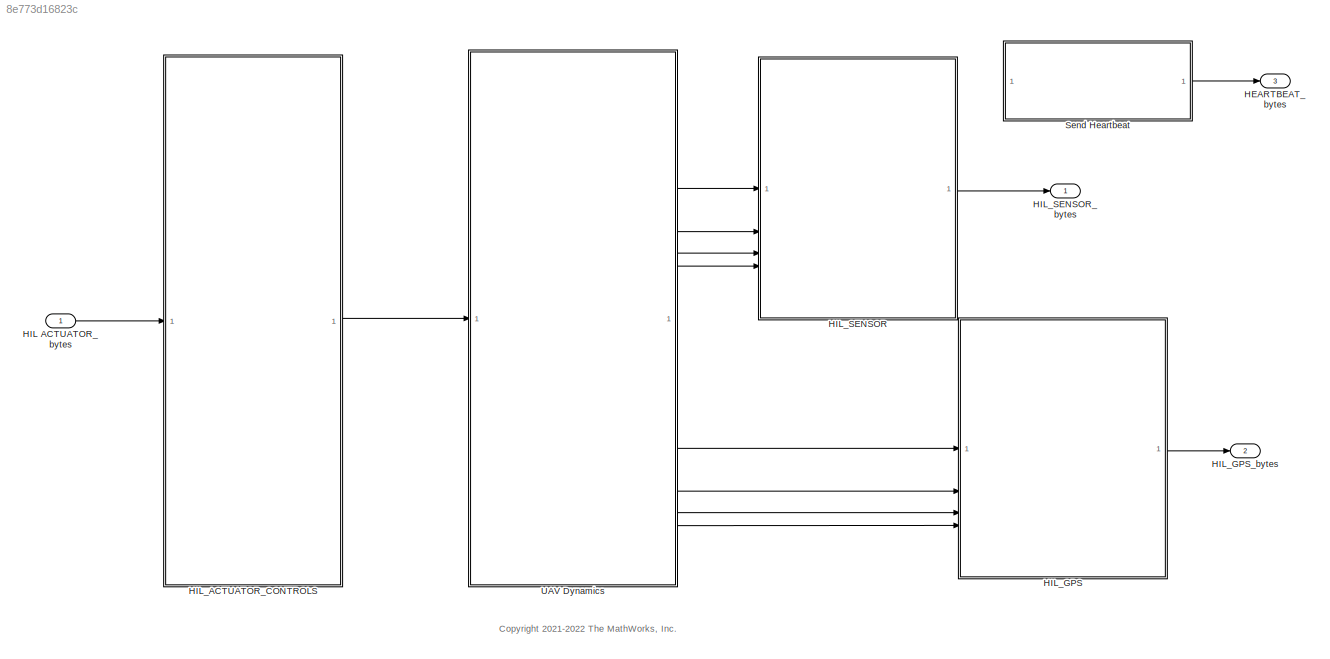
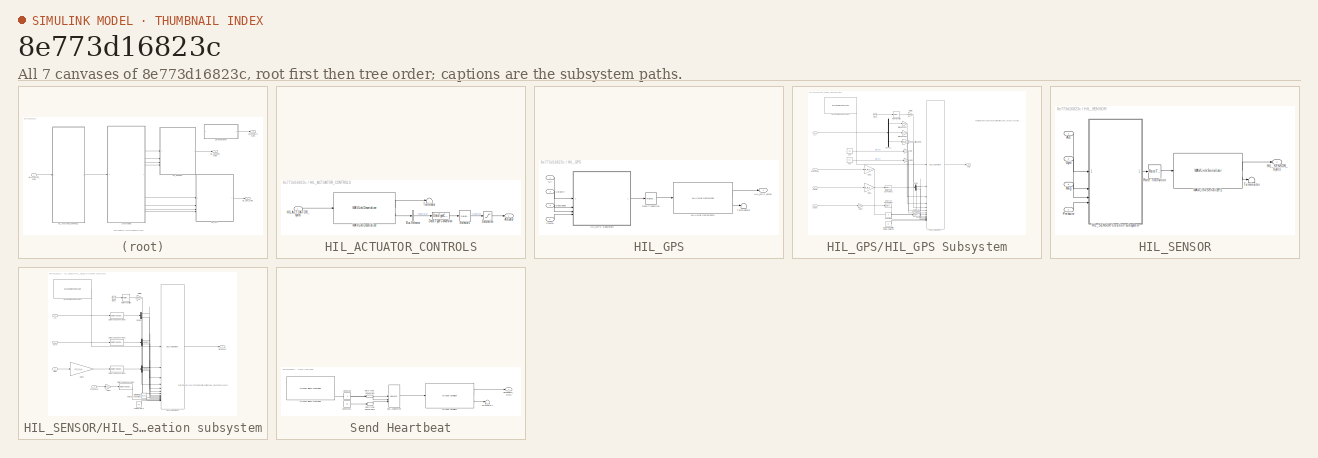
[diagram: thumbnail index - all 7 canvases of the model, root first then tree order]
MODEL slx_8e773d16823c
KIND model
CONFIG AbsTol = auto
CONFIG EnableMultiTasking = off
CONFIG FixedStep = auto
CONFIG MaxStep = auto
CONFIG MinStep = auto
CONFIG RelTol = 1e-3
CONFIG SampleTimeConstraint = Unconstrained
CONFIG SolverName = ode4
CONFIG StartTime = 0.0
CONFIG StopTime = 10.0
BLOCK [Outport] HEARTBEAT_bytes
  BusOutputAsStruct = on
  Port = 3
BLOCK [Inport] HIL ACTUATOR_bytes
  Interpolate = off
  OutDataTypeStr = uint8
  PortDimensions = MAVLink_Input_Read_Size
  SampleTime = SampleTime
  VarSizeSig = Yes
BLOCK [SubSystem] HIL_ACTUATOR_CONTROLS
BLOCK [Outport] HIL_ACTUATOR_CONTROLS/Actuator
BLOCK [BusSelector] HIL_ACTUATOR_CONTROLS/Bus Selector
  OutputSignals = Payload.controls
BLOCK [DataTypeConversion] HIL_ACTUATOR_CONTROLS/Data Type Conversion
  OutDataTypeStr = double
  RndMeth = Floor
  SaturateOnIntegerOverflow = off
BLOCK [Inport] HIL_ACTUATOR_CONTROLS/HIL ACTUATOR_bytes
BLOCK [Reference] HIL_ACTUATOR_CONTROLS/MAVLink Deserializer  REF=uavmavlinklib/MAVLink Deserializer
  SourceBlock = uavmavlinklib/MAVLink Deserializer
  SourceType = MAVLink Deserializer
BLOCK [Saturate] HIL_ACTUATOR_CONTROLS/Saturation
  LowerLimit = 0
  UpperLimit = 1
BLOCK [Selector] HIL_ACTUATOR_CONTROLS/Selector1
  IndexOptions = Index vector (dialog)
  Indices = [1:4]
  InputPortWidth = 16
  OutputSizes = 1
BLOCK [Terminator] HIL_ACTUATOR_CONTROLS/Terminator
BLOCK [SubSystem] HIL_GPS
BLOCK [Inport] HIL_GPS/Course
  Port = 4
BLOCK [Inport] HIL_GPS/GndSpeed
  Port = 3
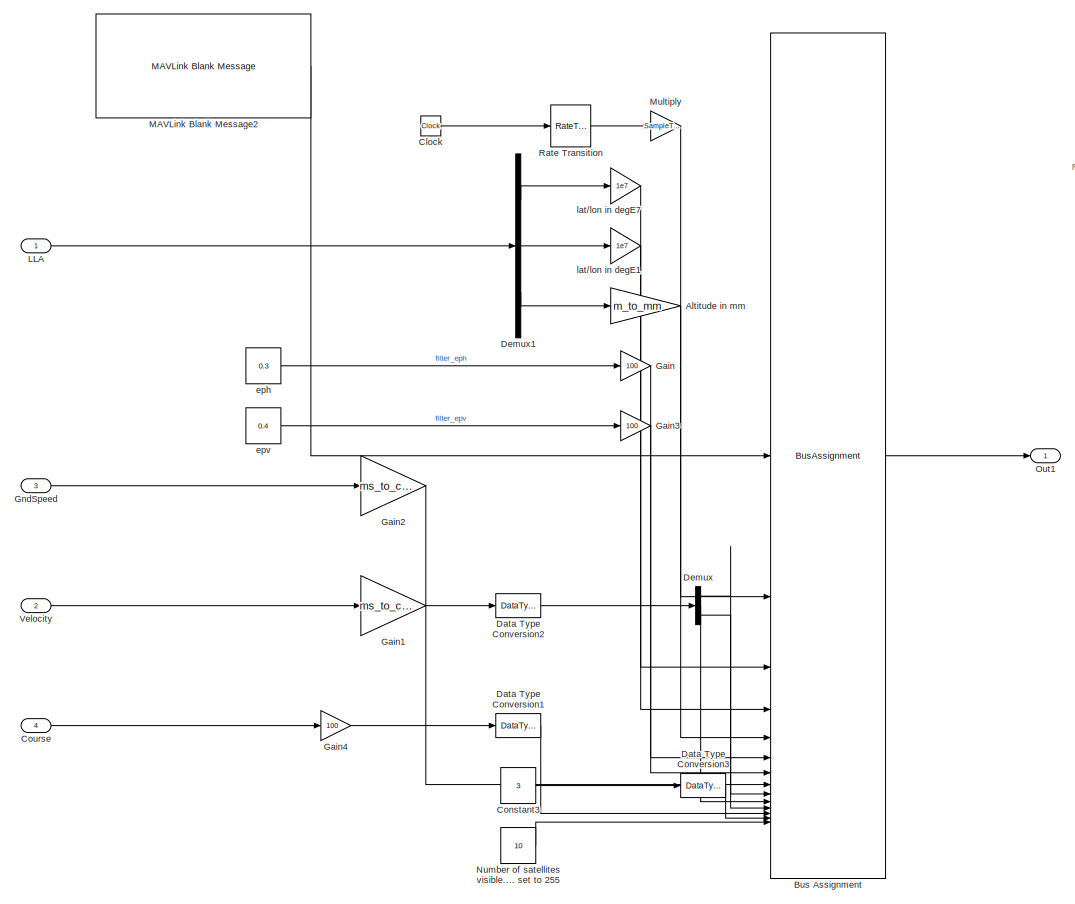
[diagram: HIL_GPS/HIL_GPS Subsystem - part 1/2, most of the canvas]
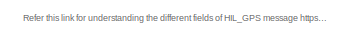
[diagram: HIL_GPS/HIL_GPS Subsystem - part 2/2, top right region]
BLOCK [SubSystem] HIL_GPS/HIL_GPS Subsystem
BLOCK [Gain] HIL_GPS/HIL_GPS Subsystem/Altitude in mm
  Gain = m_to_mm
  OutDataTypeStr = Inherit: Inherit via back propagation
BLOCK [BusAssignment] HIL_GPS/HIL_GPS Subsystem/Bus Assignment
  AssignedSignals = Payload.time_usec,Payload.lat,Payload.lon,Payload.alt,Payload.eph,Payload.epv,Payload.vel,Payload.vn,Payload.ve,Payload.vd,Payload.cog,Payload.fix_type,Payload.satellites_visible
BLOCK [Clock] HIL_GPS/HIL_GPS Subsystem/Clock
BLOCK [Constant] HIL_GPS/HIL_GPS Subsystem/Constant3
  OutDataTypeStr = Inherit: Inherit via back propagation
  SampleTime = -1
  Value = 3
BLOCK [Inport] HIL_GPS/HIL_GPS Subsystem/Course
  Port = 4
BLOCK [DataTypeConversion] HIL_GPS/HIL_GPS Subsystem/Data Type Conversion1
  OutDataTypeStr = uint16
  RndMeth = Floor
  SaturateOnIntegerOverflow = off
BLOCK [DataTypeConversion] HIL_GPS/HIL_GPS Subsystem/Data Type Conversion2
  OutDataTypeStr = int16
  RndMeth = Floor
  SaturateOnIntegerOverflow = off
BLOCK [DataTypeConversion] HIL_GPS/HIL_GPS Subsystem/Data Type Conversion3
  OutDataTypeStr = uint8
  RndMeth = Floor
  SaturateOnIntegerOverflow = off
BLOCK [Demux] HIL_GPS/HIL_GPS Subsystem/Demux
  Outputs = 3
BLOCK [Demux] HIL_GPS/HIL_GPS Subsystem/Demux1
  Outputs = 3
BLOCK [Gain] HIL_GPS/HIL_GPS Subsystem/Gain
  Gain = 100
  OutDataTypeStr = Inherit: Inherit via back propagation
BLOCK [Gain] HIL_GPS/HIL_GPS Subsystem/Gain1
  Gain = ms_to_cms
BLOCK [Gain] HIL_GPS/HIL_GPS Subsystem/Gain2
  Gain = ms_to_cms
  OutDataTypeStr = uint16
BLOCK [Gain] HIL_GPS/HIL_GPS Subsystem/Gain3
  Gain = 100
  OutDataTypeStr = Inherit: Inherit via back propagation
BLOCK [Gain] HIL_GPS/HIL_GPS Subsystem/Gain4
  Gain = 100
BLOCK [Inport] HIL_GPS/HIL_GPS Subsystem/GndSpeed
  Port = 3
BLOCK [Inport] HIL_GPS/HIL_GPS Subsystem/LLA
BLOCK [Reference] HIL_GPS/HIL_GPS Subsystem/MAVLink Blank Message2  REF=uavmavlinklib/MAVLink Blank Message
  SourceBlock = uavmavlinklib/MAVLink Blank Message
  SourceType = MAVLink Blank Message
BLOCK [Gain] HIL_GPS/HIL_GPS Subsystem/Multiply
  Gain = SampleTime*1e6
  OutDataTypeStr = Inherit: Inherit via back propagation
BLOCK [Constant] HIL_GPS/HIL_GPS Subsystem/Number of satellites visible. If unknown, set to 255
  OutDataTypeStr = Inherit: Inherit via back propagation
  SampleTime = -1
  Value = 10
BLOCK [Outport] HIL_GPS/HIL_GPS Subsystem/Out1
BLOCK [RateTransition] HIL_GPS/HIL_GPS Subsystem/Rate Transition
BLOCK [Inport] HIL_GPS/HIL_GPS Subsystem/Velocity
  Port = 2
BLOCK [Constant] HIL_GPS/HIL_GPS Subsystem/eph
  SampleTime = -1
  Value = 0.3
BLOCK [Constant] HIL_GPS/HIL_GPS Subsystem/epv
  SampleTime = -1
  Value = 0.4
BLOCK [Gain] HIL_GPS/HIL_GPS Subsystem/lat//lon in degE1
  Gain = 1e7
  OutDataTypeStr = Inherit: Inherit via back propagation
BLOCK [Gain] HIL_GPS/HIL_GPS Subsystem/lat//lon in degE7
  Gain = 1e7
  OutDataTypeStr = Inherit: Inherit via back propagation
BLOCK [Outport] HIL_GPS/HIL_GPS_bytes
BLOCK [Inport] HIL_GPS/LLA
BLOCK [Reference] HIL_GPS/MAVLink Serializer3  REF=uavmavlinklib/MAVLink Serializer
  SourceBlock = uavmavlinklib/MAVLink Serializer
  SourceType = MAVLink Serializer
BLOCK [RateTransition] HIL_GPS/Rate Transition
  OutPortSampleTime = SampleTime
BLOCK [Terminator] HIL_GPS/Terminator2
BLOCK [Inport] HIL_GPS/Velocity
  Port = 2
BLOCK [Outport] HIL_GPS_bytes
  BusOutputAsStruct = on
  Port = 2
BLOCK [SubSystem] HIL_SENSOR
BLOCK [Inport] HIL_SENSOR/Acc
BLOCK [Inport] HIL_SENSOR/Gyro
  Port = 2
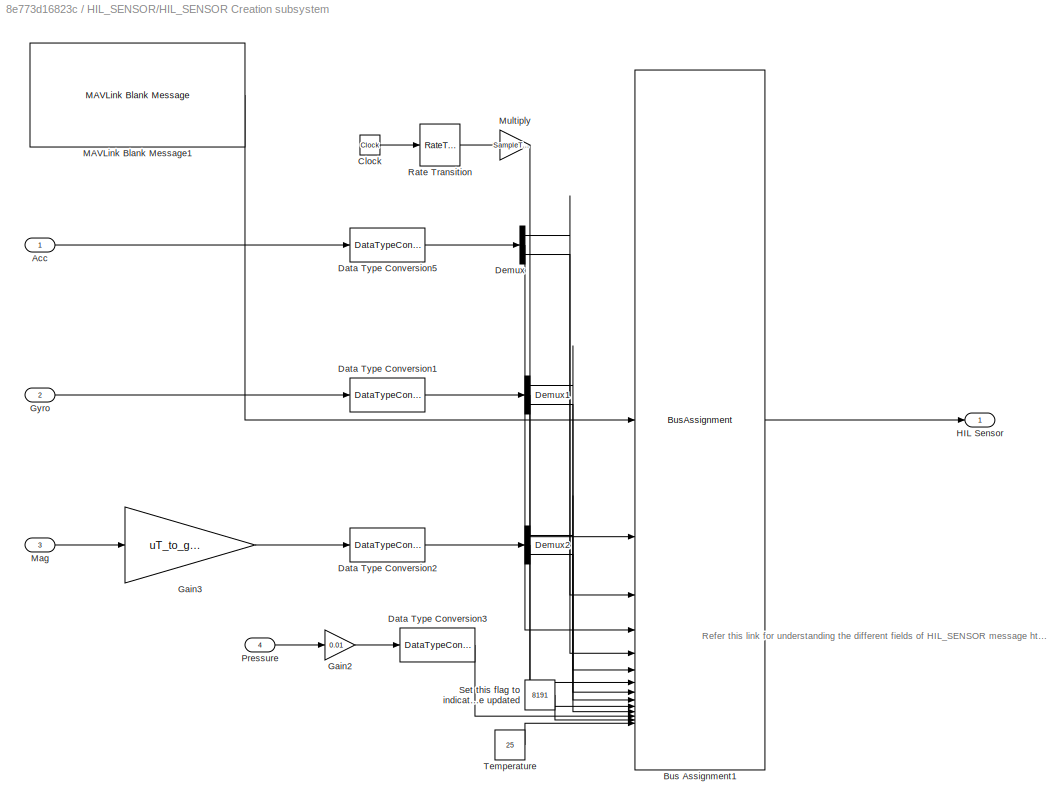
BLOCK [SubSystem] HIL_SENSOR/HIL_SENSOR Creation subsystem
BLOCK [Inport] HIL_SENSOR/HIL_SENSOR Creation subsystem/Acc
BLOCK [BusAssignment] HIL_SENSOR/HIL_SENSOR Creation subsystem/Bus Assignment1
  AssignedSignals = Payload.time_usec,Payload.xacc,Payload.yacc,Payload.zacc,Payload.xgyro,Payload.ygyro,Payload.zgyro,Payload.xmag,Payload.ymag,Payload.zmag,Payload.abs_pressure,Payload.fields_updated,Payload.temperature
BLOCK [Clock] HIL_SENSOR/HIL_SENSOR Creation subsystem/Clock
BLOCK [DataTypeConversion] HIL_SENSOR/HIL_SENSOR Creation subsystem/Data Type Conversion1
  OutDataTypeStr = single
  RndMeth = Floor
  SaturateOnIntegerOverflow = off
BLOCK [DataTypeConversion] HIL_SENSOR/HIL_SENSOR Creation subsystem/Data Type Conversion2
  OutDataTypeStr = single
  RndMeth = Floor
  SaturateOnIntegerOverflow = off
BLOCK [DataTypeConversion] HIL_SENSOR/HIL_SENSOR Creation subsystem/Data Type Conversion3
  OutDataTypeStr = single
  RndMeth = Floor
  SaturateOnIntegerOverflow = off
BLOCK [DataTypeConversion] HIL_SENSOR/HIL_SENSOR Creation subsystem/Data Type Conversion5
  OutDataTypeStr = single
  RndMeth = Floor
  SaturateOnIntegerOverflow = off
BLOCK [Demux] HIL_SENSOR/HIL_SENSOR Creation subsystem/Demux
  Outputs = 3
BLOCK [Demux] HIL_SENSOR/HIL_SENSOR Creation subsystem/Demux1
  Outputs = 3
BLOCK [Demux] HIL_SENSOR/HIL_SENSOR Creation subsystem/Demux2
  Outputs = 3
BLOCK [Gain] HIL_SENSOR/HIL_SENSOR Creation subsystem/Gain2
  Gain = 0.01
  OutDataTypeStr = single
BLOCK [Gain] HIL_SENSOR/HIL_SENSOR Creation subsystem/Gain3
  Gain = uT_to_gauss
BLOCK [Inport] HIL_SENSOR/HIL_SENSOR Creation subsystem/Gyro
  Port = 2
BLOCK [Outport] HIL_SENSOR/HIL_SENSOR Creation subsystem/HIL Sensor
BLOCK [Reference] HIL_SENSOR/HIL_SENSOR Creation subsystem/MAVLink Blank Message1  REF=uavmavlinklib/MAVLink Blank Message
  SourceBlock = uavmavlinklib/MAVLink Blank Message
  SourceType = MAVLink Blank Message
BLOCK [Inport] HIL_SENSOR/HIL_SENSOR Creation subsystem/Mag
  Port = 3
BLOCK [Gain] HIL_SENSOR/HIL_SENSOR Creation subsystem/Multiply
  Gain = SampleTime*1e6
  OutDataTypeStr = Inherit: Inherit via back propagation
BLOCK [Inport] HIL_SENSOR/HIL_SENSOR Creation subsystem/Pressure
  Port = 4
BLOCK [RateTransition] HIL_SENSOR/HIL_SENSOR Creation subsystem/Rate Transition
BLOCK [Constant] HIL_SENSOR/HIL_SENSOR Creation subsystem/Set this flag to indicate all flags are updated
  OutDataTypeStr = Inherit: Inherit via back propagation
  SampleTime = -1
  Value = 8191
BLOCK [Constant] HIL_SENSOR/HIL_SENSOR Creation subsystem/Temperature
  OutDataTypeStr = Inherit: Inherit via back propagation
  SampleTime = -1
  Value = 25
BLOCK [Outport] HIL_SENSOR/HIL_SENSOR_bytes
BLOCK [Reference] HIL_SENSOR/MAVLink Serializer1  REF=uavmavlinklib/MAVLink Serializer
  SourceBlock = uavmavlinklib/MAVLink Serializer
  SourceType = MAVLink Serializer
BLOCK [Inport] HIL_SENSOR/Mag
  Port = 3
BLOCK [Inport] HIL_SENSOR/Pressure
  Port = 4
BLOCK [RateTransition] HIL_SENSOR/Rate Transition
  OutPortSampleTime = SampleTime
BLOCK [Terminator] HIL_SENSOR/Terminator
BLOCK [Outport] HIL_SENSOR_bytes
  BusOutputAsStruct = on
BLOCK [SubSystem] Send Heartbeat
BLOCK [BusAssignment] Send Heartbeat/Bus Assignment
  AssignedSignals = Payload.autopilot,Payload.type
BLOCK [Constant] Send Heartbeat/Constant
  SampleTime = -1
BLOCK [Constant] Send Heartbeat/Constant1
  SampleTime = -1
  Value = 12
BLOCK [DataTypeConversion] Send Heartbeat/Data Type Conversion
  OutDataTypeStr = uint8
  RndMeth = Floor
  SaturateOnIntegerOverflow = off
BLOCK [DataTypeConversion] Send Heartbeat/Data Type Conversion1
  OutDataTypeStr = uint8
  RndMeth = Floor
  SaturateOnIntegerOverflow = off
BLOCK [Outport] Send Heartbeat/HEARTBEAT_bytes
BLOCK [Reference] Send Heartbeat/MAVLink Blank Message  REF=uavmavlinklib/MAVLink Blank Message
  SourceBlock = uavmavlinklib/MAVLink Blank Message
  SourceType = MAVLink Blank Message
BLOCK [Reference] Send Heartbeat/MAVLink Serializer  REF=uavmavlinklib/MAVLink Serializer
  SourceBlock = uavmavlinklib/MAVLink Serializer
  SourceType = MAVLink Serializer
BLOCK [Terminator] Send Heartbeat/Terminator4
BLOCK [ModelReference] UAV Dynamics 
  ModelNameDialog = UAV_Dynamics.slx
  ModelReferenceVersion = 2.0
ANNOTATION (root): <copyright redacted>
ANNOTATION HIL_GPS/HIL_GPS Subsystem: Refer this link for understanding the different fields of HIL_GPS message https://github.com/mavlink/mavlink/blob/master/message_definitions/v1.0/common.xml#L5677
ANNOTATION HIL_SENSOR/HIL_SENSOR Creation subsystem: Refer this link for understanding the different fields of HIL_SENSOR message https://github.com/mavlink/mavlink/blob/master/message_definitions/v1.0/common.xml#L5608
LINE HIL ACTUATOR_bytes:1 -> HIL_ACTUATOR_CONTROLS:1
LINE HIL_ACTUATOR_CONTROLS/Bus Selector:1 -> HIL_ACTUATOR_CONTROLS/Data Type Conversion:1
LINE HIL_ACTUATOR_CONTROLS/Data Type Conversion:1 -> HIL_ACTUATOR_CONTROLS/Selector1:1
LINE HIL_ACTUATOR_CONTROLS/HIL ACTUATOR_bytes:1 -> HIL_ACTUATOR_CONTROLS/MAVLink Deserializer:1
LINE HIL_ACTUATOR_CONTROLS/MAVLink Deserializer:1 -> HIL_ACTUATOR_CONTROLS/Terminator:1
LINE HIL_ACTUATOR_CONTROLS/MAVLink Deserializer:2 -> HIL_ACTUATOR_CONTROLS/Bus Selector:1
LINE HIL_ACTUATOR_CONTROLS/Saturation:1 -> HIL_ACTUATOR_CONTROLS/Actuator:1
LINE HIL_ACTUATOR_CONTROLS/Selector1:1 -> HIL_ACTUATOR_CONTROLS/Saturation:1
LINE HIL_ACTUATOR_CONTROLS:1 -> UAV Dynamics :1
LINE HIL_GPS/Course:1 -> HIL_GPS/HIL_GPS Subsystem:4
LINE HIL_GPS/GndSpeed:1 -> HIL_GPS/HIL_GPS Subsystem:3
LINE HIL_GPS/HIL_GPS Subsystem/Altitude in mm:1 -> HIL_GPS/HIL_GPS Subsystem/Bus Assignment:5
LINE HIL_GPS/HIL_GPS Subsystem/Bus Assignment:1 -> HIL_GPS/HIL_GPS Subsystem/Out1:1
LINE HIL_GPS/HIL_GPS Subsystem/Clock:1 -> HIL_GPS/HIL_GPS Subsystem/Rate Transition:1
LINE HIL_GPS/HIL_GPS Subsystem/Constant3:1 -> HIL_GPS/HIL_GPS Subsystem/Data Type Conversion3:1
LINE HIL_GPS/HIL_GPS Subsystem/Course:1 -> HIL_GPS/HIL_GPS Subsystem/Gain4:1
LINE HIL_GPS/HIL_GPS Subsystem/Data Type Conversion1:1 -> HIL_GPS/HIL_GPS Subsystem/Bus Assignment:12
LINE HIL_GPS/HIL_GPS Subsystem/Data Type Conversion2:1 -> HIL_GPS/HIL_GPS Subsystem/Demux:1
LINE HIL_GPS/HIL_GPS Subsystem/Data Type Conversion3:1 -> HIL_GPS/HIL_GPS Subsystem/Bus Assignment:13
LINE HIL_GPS/HIL_GPS Subsystem/Demux1:1 -> HIL_GPS/HIL_GPS Subsystem/lat//lon in degE7:1
LINE HIL_GPS/HIL_GPS Subsystem/Demux1:2 -> HIL_GPS/HIL_GPS Subsystem/lat//lon in degE1:1
LINE HIL_GPS/HIL_GPS Subsystem/Demux1:3 -> HIL_GPS/HIL_GPS Subsystem/Altitude in mm:1
LINE HIL_GPS/HIL_GPS Subsystem/Demux:1 -> HIL_GPS/HIL_GPS Subsystem/Bus Assignment:9
LINE HIL_GPS/HIL_GPS Subsystem/Demux:2 -> HIL_GPS/HIL_GPS Subsystem/Bus Assignment:10
LINE HIL_GPS/HIL_GPS Subsystem/Demux:3 -> HIL_GPS/HIL_GPS Subsystem/Bus Assignment:11
LINE HIL_GPS/HIL_GPS Subsystem/Gain1:1 -> HIL_GPS/HIL_GPS Subsystem/Data Type Conversion2:1
LINE HIL_GPS/HIL_GPS Subsystem/Gain2:1 -> HIL_GPS/HIL_GPS Subsystem/Bus Assignment:8
LINE HIL_GPS/HIL_GPS Subsystem/Gain3:1 -> HIL_GPS/HIL_GPS Subsystem/Bus Assignment:7
LINE HIL_GPS/HIL_GPS Subsystem/Gain4:1 -> HIL_GPS/HIL_GPS Subsystem/Data Type Conversion1:1
LINE HIL_GPS/HIL_GPS Subsystem/Gain:1 -> HIL_GPS/HIL_GPS Subsystem/Bus Assignment:6
LINE HIL_GPS/HIL_GPS Subsystem/GndSpeed:1 -> HIL_GPS/HIL_GPS Subsystem/Gain2:1
LINE HIL_GPS/HIL_GPS Subsystem/LLA:1 -> HIL_GPS/HIL_GPS Subsystem/Demux1:1
LINE HIL_GPS/HIL_GPS Subsystem/MAVLink Blank Message2:1 -> HIL_GPS/HIL_GPS Subsystem/Bus Assignment:1
LINE HIL_GPS/HIL_GPS Subsystem/Multiply:1 -> HIL_GPS/HIL_GPS Subsystem/Bus Assignment:2
LINE HIL_GPS/HIL_GPS Subsystem/Number of satellites visible. If unknown, set to 255:1 -> HIL_GPS/HIL_GPS Subsystem/Bus Assignment:14
LINE HIL_GPS/HIL_GPS Subsystem/Rate Transition:1 -> HIL_GPS/HIL_GPS Subsystem/Multiply:1
LINE HIL_GPS/HIL_GPS Subsystem/Velocity:1 -> HIL_GPS/HIL_GPS Subsystem/Gain1:1
LINE HIL_GPS/HIL_GPS Subsystem/eph:1 -> HIL_GPS/HIL_GPS Subsystem/Gain:1
LINE HIL_GPS/HIL_GPS Subsystem/epv:1 -> HIL_GPS/HIL_GPS Subsystem/Gain3:1
LINE HIL_GPS/HIL_GPS Subsystem/lat//lon in degE1:1 -> HIL_GPS/HIL_GPS Subsystem/Bus Assignment:4
LINE HIL_GPS/HIL_GPS Subsystem/lat//lon in degE7:1 -> HIL_GPS/HIL_GPS Subsystem/Bus Assignment:3
LINE HIL_GPS/HIL_GPS Subsystem:1 -> HIL_GPS/Rate Transition:1
LINE HIL_GPS/LLA:1 -> HIL_GPS/HIL_GPS Subsystem:1
LINE HIL_GPS/MAVLink Serializer3:1 -> HIL_GPS/HIL_GPS_bytes:1
LINE HIL_GPS/MAVLink Serializer3:2 -> HIL_GPS/Terminator2:1
LINE HIL_GPS/Rate Transition:1 -> HIL_GPS/MAVLink Serializer3:1
LINE HIL_GPS/Velocity:1 -> HIL_GPS/HIL_GPS Subsystem:2
LINE HIL_GPS:1 -> HIL_GPS_bytes:1
LINE HIL_SENSOR/Acc:1 -> HIL_SENSOR/HIL_SENSOR Creation subsystem:1
LINE HIL_SENSOR/Gyro:1 -> HIL_SENSOR/HIL_SENSOR Creation subsystem:2
LINE HIL_SENSOR/HIL_SENSOR Creation subsystem/Acc:1 -> HIL_SENSOR/HIL_SENSOR Creation subsystem/Data Type Conversion5:1
LINE HIL_SENSOR/HIL_SENSOR Creation subsystem/Bus Assignment1:1 -> HIL_SENSOR/HIL_SENSOR Creation subsystem/HIL Sensor:1
LINE HIL_SENSOR/HIL_SENSOR Creation subsystem/Clock:1 -> HIL_SENSOR/HIL_SENSOR Creation subsystem/Rate Transition:1
LINE HIL_SENSOR/HIL_SENSOR Creation subsystem/Data Type Conversion1:1 -> HIL_SENSOR/HIL_SENSOR Creation subsystem/Demux1:1
LINE HIL_SENSOR/HIL_SENSOR Creation subsystem/Data Type Conversion2:1 -> HIL_SENSOR/HIL_SENSOR Creation subsystem/Demux2:1
LINE HIL_SENSOR/HIL_SENSOR Creation subsystem/Data Type Conversion3:1 -> HIL_SENSOR/HIL_SENSOR Creation subsystem/Bus Assignment1:12
LINE HIL_SENSOR/HIL_SENSOR Creation subsystem/Data Type Conversion5:1 -> HIL_SENSOR/HIL_SENSOR Creation subsystem/Demux:1
LINE HIL_SENSOR/HIL_SENSOR Creation subsystem/Demux1:1 -> HIL_SENSOR/HIL_SENSOR Creation subsystem/Bus Assignment1:6
LINE HIL_SENSOR/HIL_SENSOR Creation subsystem/Demux1:2 -> HIL_SENSOR/HIL_SENSOR Creation subsystem/Bus Assignment1:7
LINE HIL_SENSOR/HIL_SENSOR Creation subsystem/Demux1:3 -> HIL_SENSOR/HIL_SENSOR Creation subsystem/Bus Assignment1:8
LINE HIL_SENSOR/HIL_SENSOR Creation subsystem/Demux2:1 -> HIL_SENSOR/HIL_SENSOR Creation subsystem/Bus Assignment1:9
LINE HIL_SENSOR/HIL_SENSOR Creation subsystem/Demux2:2 -> HIL_SENSOR/HIL_SENSOR Creation subsystem/Bus Assignment1:10
LINE HIL_SENSOR/HIL_SENSOR Creation subsystem/Demux2:3 -> HIL_SENSOR/HIL_SENSOR Creation subsystem/Bus Assignment1:11
LINE HIL_SENSOR/HIL_SENSOR Creation subsystem/Demux:1 -> HIL_SENSOR/HIL_SENSOR Creation subsystem/Bus Assignment1:3
LINE HIL_SENSOR/HIL_SENSOR Creation subsystem/Demux:2 -> HIL_SENSOR/HIL_SENSOR Creation subsystem/Bus Assignment1:4
LINE HIL_SENSOR/HIL_SENSOR Creation subsystem/Demux:3 -> HIL_SENSOR/HIL_SENSOR Creation subsystem/Bus Assignment1:5
LINE HIL_SENSOR/HIL_SENSOR Creation subsystem/Gain2:1 -> HIL_SENSOR/HIL_SENSOR Creation subsystem/Data Type Conversion3:1
LINE HIL_SENSOR/HIL_SENSOR Creation subsystem/Gain3:1 -> HIL_SENSOR/HIL_SENSOR Creation subsystem/Data Type Conversion2:1
LINE HIL_SENSOR/HIL_SENSOR Creation subsystem/Gyro:1 -> HIL_SENSOR/HIL_SENSOR Creation subsystem/Data Type Conversion1:1
LINE HIL_SENSOR/HIL_SENSOR Creation subsystem/MAVLink Blank Message1:1 -> HIL_SENSOR/HIL_SENSOR Creation subsystem/Bus Assignment1:1
LINE HIL_SENSOR/HIL_SENSOR Creation subsystem/Mag:1 -> HIL_SENSOR/HIL_SENSOR Creation subsystem/Gain3:1
LINE HIL_SENSOR/HIL_SENSOR Creation subsystem/Multiply:1 -> HIL_SENSOR/HIL_SENSOR Creation subsystem/Bus Assignment1:2
LINE HIL_SENSOR/HIL_SENSOR Creation subsystem/Pressure:1 -> HIL_SENSOR/HIL_SENSOR Creation subsystem/Gain2:1
LINE HIL_SENSOR/HIL_SENSOR Creation subsystem/Rate Transition:1 -> HIL_SENSOR/HIL_SENSOR Creation subsystem/Multiply:1
LINE HIL_SENSOR/HIL_SENSOR Creation subsystem/Set this flag to indicate all flags are updated:1 -> HIL_SENSOR/HIL_SENSOR Creation subsystem/Bus Assignment1:13
LINE HIL_SENSOR/HIL_SENSOR Creation subsystem/Temperature:1 -> HIL_SENSOR/HIL_SENSOR Creation subsystem/Bus Assignment1:14
LINE HIL_SENSOR/HIL_SENSOR Creation subsystem:1 -> HIL_SENSOR/Rate Transition:1
LINE HIL_SENSOR/MAVLink Serializer1:1 -> HIL_SENSOR/HIL_SENSOR_bytes:1
LINE HIL_SENSOR/MAVLink Serializer1:2 -> HIL_SENSOR/Terminator:1
LINE HIL_SENSOR/Mag:1 -> HIL_SENSOR/HIL_SENSOR Creation subsystem:3
LINE HIL_SENSOR/Pressure:1 -> HIL_SENSOR/HIL_SENSOR Creation subsystem:4
LINE HIL_SENSOR/Rate Transition:1 -> HIL_SENSOR/MAVLink Serializer1:1
LINE HIL_SENSOR:1 -> HIL_SENSOR_bytes:1
LINE Send Heartbeat/Bus Assignment:1 -> Send Heartbeat/MAVLink Serializer:1
LINE Send Heartbeat/Constant1:1 -> Send Heartbeat/Data Type Conversion1:1
LINE Send Heartbeat/Constant:1 -> Send Heartbeat/Data Type Conversion:1
LINE Send Heartbeat/Data Type Conversion1:1 -> Send Heartbeat/Bus Assignment:3
LINE Send Heartbeat/Data Type Conversion:1 -> Send Heartbeat/Bus Assignment:2
LINE Send Heartbeat/MAVLink Blank Message:1 -> Send Heartbeat/Bus Assignment:1
LINE Send Heartbeat/MAVLink Serializer:1 -> Send Heartbeat/HEARTBEAT_bytes:1
LINE Send Heartbeat/MAVLink Serializer:2 -> Send Heartbeat/Terminator4:1
LINE Send Heartbeat:1 -> HEARTBEAT_bytes:1
LINE UAV Dynamics :1 -> HIL_SENSOR:1
LINE UAV Dynamics :2 -> HIL_SENSOR:2
LINE UAV Dynamics :3 -> HIL_SENSOR:3
LINE UAV Dynamics :4 -> HIL_SENSOR:4
LINE UAV Dynamics :5 -> HIL_GPS:1
LINE UAV Dynamics :6 -> HIL_GPS:2
LINE UAV Dynamics :7 -> HIL_GPS:3
LINE UAV Dynamics :8 -> HIL_GPS:4
